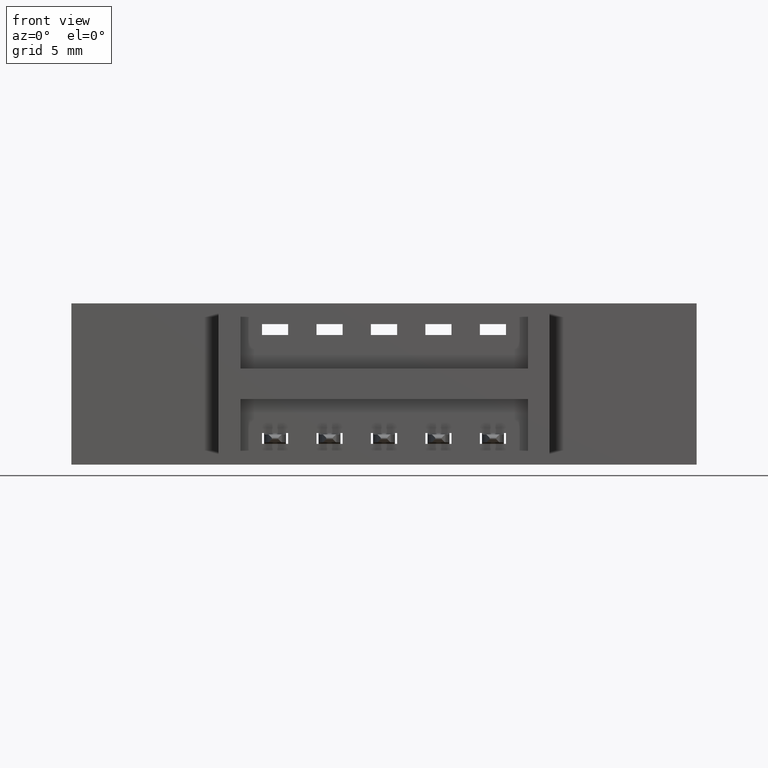
[diagram: clean part render]
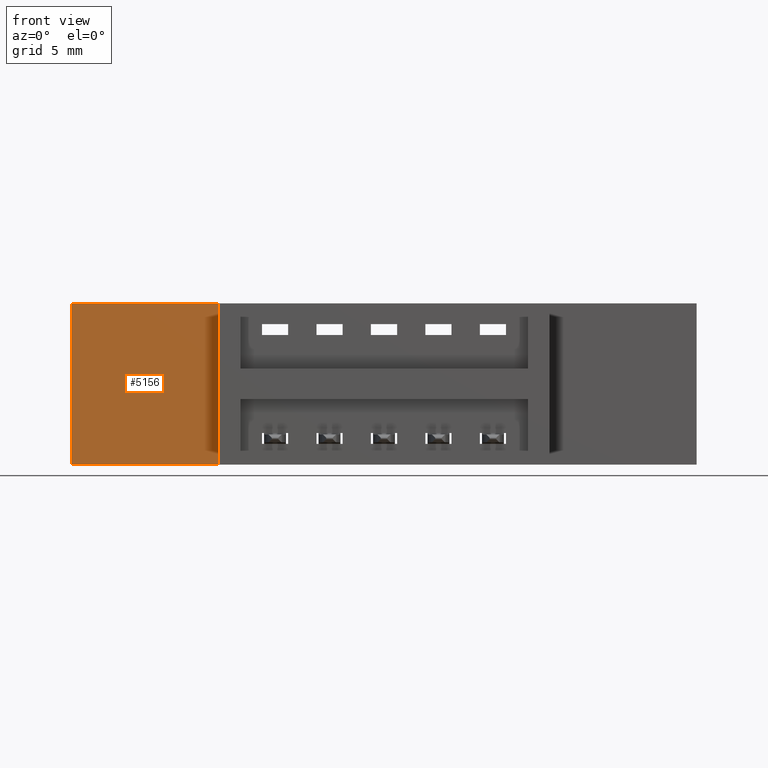
[diagram: same view with one face highlighted and labeled with its STEP entity id]
A machine part, front view. The second image highlights one B-rep face of the part: STEP entity #5156.
In plain terms, the highlighted planar face has unit normal (0, -1, 0).
Its self-contained STEP definition (entity closure, byte-faithful):
#308 = VECTOR ( 'NONE', #7717, 39.37007874015748143 ) ;
#320 = CARTESIAN_POINT ( 'NONE',  ( 0.3375000000000001332, 0.1699999999999999845, 0.0000000000000000000 ) ) ;
#340 = LINE ( 'NONE', #2374, #6367 ) ;
#816 = EDGE_CURVE ( 'NONE', #2689, #6894, #7351, .T. ) ;
#1032 = ORIENTED_EDGE ( 'NONE', *, *, #1564, .T. ) ;
#1564 = EDGE_CURVE ( 'NONE', #8133, #2689, #5045, .T. ) ;
#2308 = ORIENTED_EDGE ( 'NONE', *, *, #4884, .T. ) ;
#2374 = CARTESIAN_POINT ( 'NONE',  ( 0.0000000000000000000, 0.1699999999999999845, 0.0000000000000000000 ) ) ;
#2689 = VERTEX_POINT ( 'NONE', #5896 ) ;
#2864 = CARTESIAN_POINT ( 'NONE',  ( 0.3375000000000002442, 0.1699999999999999845, -0.3700000000000001621 ) ) ;
#3142 = LINE ( 'NONE', #6949, #308 ) ;
#3243 = EDGE_LOOP ( 'NONE', ( #1032, #3754, #5713, #2308 ) ) ;
#3754 = ORIENTED_EDGE ( 'NONE', *, *, #816, .T. ) ;
#4470 = DIRECTION ( 'NONE',  ( 0.0000000000000000000, -1.000000000000000000, 0.0000000000000000000 ) ) ;
#4594 = AXIS2_PLACEMENT_3D ( 'NONE', #5101, #4470, #6475 ) ;
#4884 = EDGE_CURVE ( 'NONE', #5521, #8133, #340, .T. ) ;
#5045 = LINE ( 'NONE', #5200, #5754 ) ;
#5101 = CARTESIAN_POINT ( 'NONE',  ( 0.0000000000000000000, 0.1699999999999999845, -0.3700000000000001621 ) ) ;
#5156 = ADVANCED_FACE ( 'NONE', ( #5739 ), #5665, .T. ) ;
#5200 = CARTESIAN_POINT ( 'NONE',  ( 0.0000000000000000000, 0.1699999999999999845, 0.0000000000000000000 ) ) ;
#5383 = CARTESIAN_POINT ( 'NONE',  ( 0.0000000000000000000, 0.1699999999999999845, -0.3700000000000001621 ) ) ;
#5521 = VERTEX_POINT ( 'NONE', #320 ) ;
#5665 = PLANE ( 'NONE',  #4594 ) ;
#5713 = ORIENTED_EDGE ( 'NONE', *, *, #7803, .T. ) ;
#5739 = FACE_OUTER_BOUND ( 'NONE', #3243, .T. ) ;
#5754 = VECTOR ( 'NONE', #7343, 39.37007874015748143 ) ;
#5896 = CARTESIAN_POINT ( 'NONE',  ( 0.0000000000000000000, 0.1699999999999999845, -0.3700000000000001621 ) ) ;
#6024 = CARTESIAN_POINT ( 'NONE',  ( 0.0000000000000000000, 0.1699999999999999845, 0.0000000000000000000 ) ) ;
#6163 = VECTOR ( 'NONE', #7966, 39.37007874015748143 ) ;
#6367 = VECTOR ( 'NONE', #8067, 39.37007874015748143 ) ;
#6475 = DIRECTION ( 'NONE',  ( 0.0000000000000000000, -0.0000000000000000000, -1.000000000000000000 ) ) ;
#6894 = VERTEX_POINT ( 'NONE', #2864 ) ;
#6949 = CARTESIAN_POINT ( 'NONE',  ( 0.3375000000000001332, 0.1699999999999999845, 0.0000000000000000000 ) ) ;
#7343 = DIRECTION ( 'NONE',  ( 0.0000000000000000000, 0.0000000000000000000, -1.000000000000000000 ) ) ;
#7351 = LINE ( 'NONE', #5383, #6163 ) ;
#7717 = DIRECTION ( 'NONE',  ( -1.845843238962339506E-16, -0.0000000000000000000, 1.000000000000000000 ) ) ;
#7803 = EDGE_CURVE ( 'NONE', #6894, #5521, #3142, .T. ) ;
#7966 = DIRECTION ( 'NONE',  ( 1.000000000000000000, 0.0000000000000000000, 0.0000000000000000000 ) ) ;
#8067 = DIRECTION ( 'NONE',  ( -1.000000000000000000, -0.0000000000000000000, -0.0000000000000000000 ) ) ;
#8133 = VERTEX_POINT ( 'NONE', #6024 ) ;